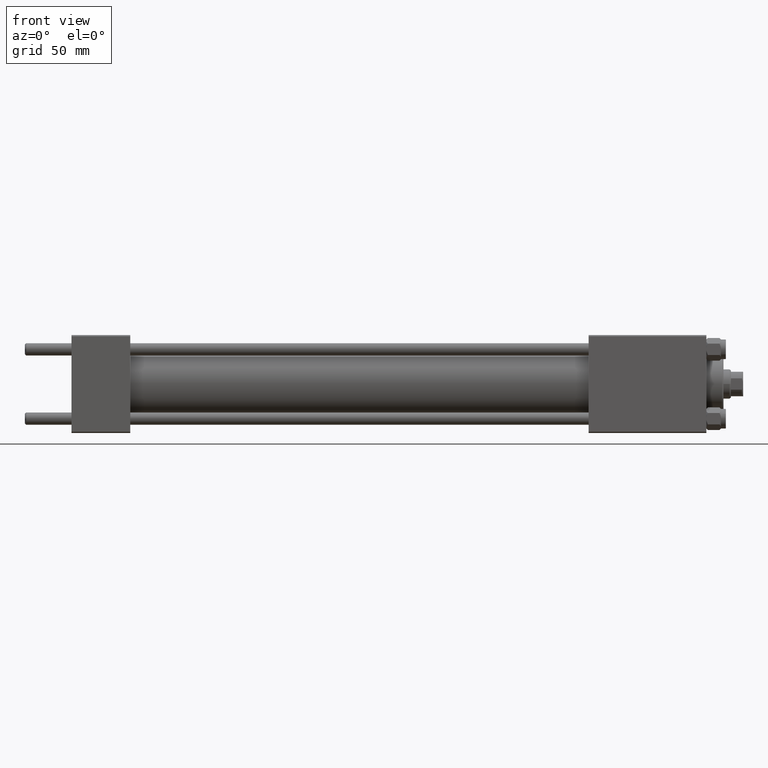
[diagram: clean part render]
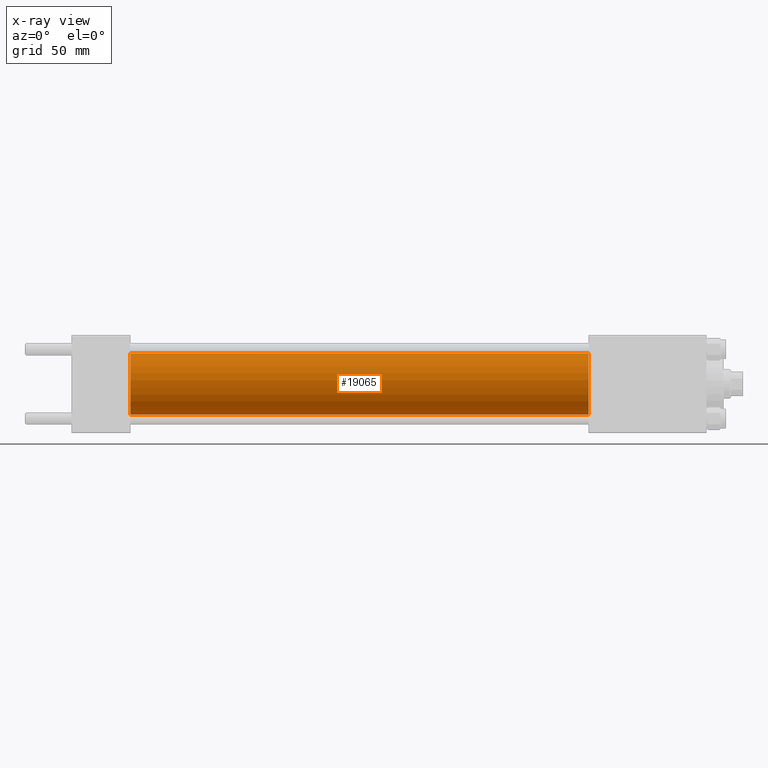
[diagram: x-ray — body ghosted, one internal face saturated and labeled with its STEP entity id]
A machine part, front view, then the same camera in x-ray: the body is ghosted and one INTERNAL B-rep face — a face not visible from any outside direction — is saturated and labeled: STEP entity #19065.
In plain terms, the highlighted cylindrical surface (edge-blend (fillet) strip) has radius 12.5 mm, axis along (-1, -0, -0).
Its self-contained STEP definition (entity closure, byte-faithful):
#6565 = AXIS2_PLACEMENT_3D ( 'NONE', #35498, #13323, #16855 ) ;
#7215 = EDGE_CURVE ( 'NONE', #21937, #22950, #27002, .T. ) ;
#8391 = EDGE_CURVE ( 'NONE', #14275, #21937, #39697, .T. ) ;
#9060 = DIRECTION ( 'NONE',  ( 0.000000000000000000, 0.000000000000000000, -1.000000000000000000 ) ) ;
#9313 = EDGE_LOOP ( 'NONE', ( #16348, #17884, #18500, #13933 ) ) ;
#11853 = AXIS2_PLACEMENT_3D ( 'NONE', #21122, #39514, #9060 ) ;
#12892 = CARTESIAN_POINT ( 'NONE',  ( 24.00000000000000000, 0.000000000000000000, 12.49999999999999645 ) ) ;
#13323 = DIRECTION ( 'NONE',  ( -1.000000000000000000, -0.000000000000000000, -0.000000000000000000 ) ) ;
#13933 = ORIENTED_EDGE ( 'NONE', *, *, #19557, .F. ) ;
#14275 = VERTEX_POINT ( 'NONE', #24866 ) ;
#16348 = ORIENTED_EDGE ( 'NONE', *, *, #8391, .T. ) ;
#16822 = DIRECTION ( 'NONE',  ( 1.000000000000000000, 0.000000000000000000, 0.000000000000000000 ) ) ;
#16855 = DIRECTION ( 'NONE',  ( 0.000000000000000000, 0.000000000000000000, 1.000000000000000000 ) ) ;
#17884 = ORIENTED_EDGE ( 'NONE', *, *, #7215, .T. ) ;
#18500 = ORIENTED_EDGE ( 'NONE', *, *, #40145, .F. ) ;
#19065 = ADVANCED_FACE ( 'NONE', ( #21115 ), #28428, .F. ) ;
#19557 = EDGE_CURVE ( 'NONE', #14275, #39892, #26122, .T. ) ;
#21115 = FACE_OUTER_BOUND ( 'NONE', #9313, .T. ) ;
#21122 = CARTESIAN_POINT ( 'NONE',  ( 24.00000000000000000, 0.000000000000000000, 0.000000000000000000 ) ) ;
#21937 = VERTEX_POINT ( 'NONE', #34269 ) ;
#22343 = DIRECTION ( 'NONE',  ( -1.000000000000000000, -0.000000000000000000, -0.000000000000000000 ) ) ;
#22950 = VERTEX_POINT ( 'NONE', #45260 ) ;
#23482 = VECTOR ( 'NONE', #22343, 1000.000000000000000 ) ;
#24710 = CIRCLE ( 'NONE', #11853, 12.49999999999999645 ) ;
#24866 = CARTESIAN_POINT ( 'NONE',  ( 211.0000000000000000, 0.000000000000000000, 12.49999999999999645 ) ) ;
#26122 = LINE ( 'NONE', #41455, #23482 ) ;
#27002 = LINE ( 'NONE', #27243, #27651 ) ;
#27243 = CARTESIAN_POINT ( 'NONE',  ( 211.0000000000000000, 1.530808498934191127E-15, -12.49999999999999645 ) ) ;
#27651 = VECTOR ( 'NONE', #34788, 1000.000000000000000 ) ;
#28428 = CYLINDRICAL_SURFACE ( 'NONE', #6565, 12.49999999999999645 ) ;
#31681 = CARTESIAN_POINT ( 'NONE',  ( 211.0000000000000000, 0.000000000000000000, 0.000000000000000000 ) ) ;
#32406 = DIRECTION ( 'NONE',  ( 0.000000000000000000, 0.000000000000000000, -1.000000000000000000 ) ) ;
#32469 = AXIS2_PLACEMENT_3D ( 'NONE', #31681, #16822, #32406 ) ;
#34269 = CARTESIAN_POINT ( 'NONE',  ( 211.0000000000000000, 1.530808498934191127E-15, -12.49999999999999645 ) ) ;
#34788 = DIRECTION ( 'NONE',  ( -1.000000000000000000, -0.000000000000000000, -0.000000000000000000 ) ) ;
#35498 = CARTESIAN_POINT ( 'NONE',  ( 211.0000000000000000, 0.000000000000000000, 0.000000000000000000 ) ) ;
#39514 = DIRECTION ( 'NONE',  ( 1.000000000000000000, 0.000000000000000000, 0.000000000000000000 ) ) ;
#39697 = CIRCLE ( 'NONE', #32469, 12.49999999999999645 ) ;
#39892 = VERTEX_POINT ( 'NONE', #12892 ) ;
#40145 = EDGE_CURVE ( 'NONE', #39892, #22950, #24710, .T. ) ;
#41455 = CARTESIAN_POINT ( 'NONE',  ( 211.0000000000000000, 0.000000000000000000, 12.49999999999999645 ) ) ;
#45260 = CARTESIAN_POINT ( 'NONE',  ( 24.00000000000000000, 1.530808498934191127E-15, -12.49999999999999645 ) ) ;